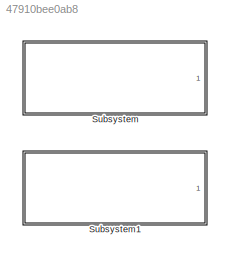
MODEL slx_47910bee0ab8
KIND model
CONFIG AbsTol = auto
CONFIG EnableMultiTasking = off
CONFIG FixedStep = auto
CONFIG MaxStep = auto
CONFIG MinStep = auto
CONFIG RelTol = 1e-3
CONFIG SampleTimeConstraint = Unconstrained
CONFIG SolverName = VariableStepAuto
CONFIG StartTime = 0.0
CONFIG StopTime = 10.0
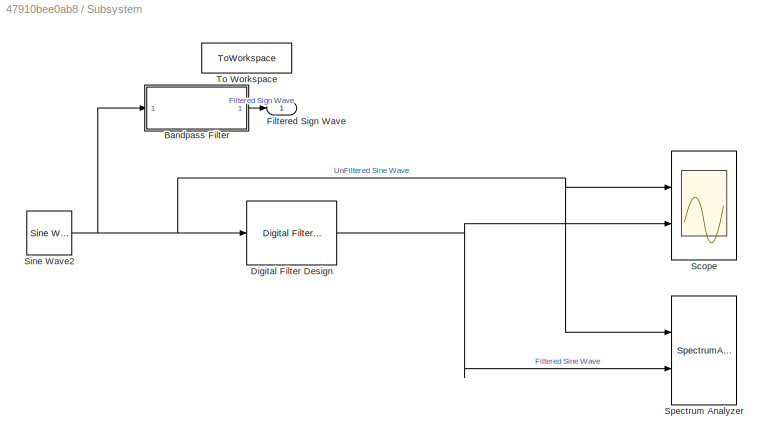
BLOCK [SubSystem] Subsystem
  Ports = [0, 1]
  RequestExecContextInheritance = off
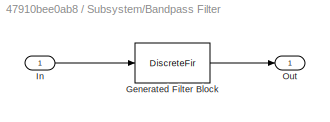
BLOCK [SubSystem] Subsystem/Bandpass Filter
  Commented = on
  CopyFcn = fdesignblkfcn(gcbh, {'CopyFcn'});
  DialogController = fdesignblkfcn
  InitFcn = fdesignblkfcn(gcbh, {'InitFcn'});
  Ports = [1, 1]
  RequestExecContextInheritance = off
  UserDataPersistent = on
BLOCK [DiscreteFir] Subsystem/Bandpass Filter/Generated Filter Block
  Coefficients = [-0.00089922914877444424 0.00164145187479435928 0.00313520718422255745 -0.00407075508288146874 -0.00637318522279040241 0.00748742868060905172 0.00983543195662957281 -0.0101893165134462078 -0.011302794465874122 0.0096929185841818314 0.00794286539874642684 -0.00313682478812214987 0.00282998788779430157 -0.0115086742430014887 -0.0220801362194615741 0.0342453254245076721 0.0483566616489054524 -0.06235...<+691ch>
  InputPortMap = u0
  InputProcessing = Columns as channels (frame based)
  OutputPortMap = o0
  Ports = [1, 1]
  Tag = BlockMethodSubSystem
BLOCK [Inport] Subsystem/Bandpass Filter/In
BLOCK [Outport] Subsystem/Bandpass Filter/Out
  VectorParamsAs1DForOutWhenUnconnected = off
BLOCK [Reference] Subsystem/Digital Filter Design  REF=dsparch4/Digital
Filter Design
  Ports = [1, 1]
  SourceBlock = dsparch4/Digital\nFilter Design
  SourceProductBaseCode = DS
  SourceType = Digital Filter Design
  UserDataPersistent = on
BLOCK [Outport] Subsystem/Filtered Sign Wave
BLOCK [Scope] Subsystem/Scope
  Floating = off
  NumInputPorts = 2
  Ports = [2]
  ScopeSpecificationString = Simulink.scopes.TimeScopeBlockCfg('CurrentConfiguration', extmgr.ConfigurationSet(extmgr.Configuration('Core','General UI',true),extmgr.Configuration('Core','Source UI',true),extmgr.Configuration('Sources','WiredSimulink',true),extmgr.Configuration('Visuals','Time Domain',true,'SerializedDisplays',{struct('MinYLimReal','-1.26474','MaxYLimReal','1.26474','YLabelReal','','MinYLimMag','0.00000','MaxY...<+1361ch>
BLOCK [Reference] Subsystem/Sine Wave2  REF=dspsrcs4/Sine Wave
  Ports = [0, 1]
  SourceBlock = dspsrcs4/Sine Wave
  SourceProductBaseCode = DS
  SourceType = Sine Wave
BLOCK [SpectrumAnalyzer] Subsystem/Spectrum Analyzer
  NumInputPorts = 2
  Ports = [2]
  ScopeSpecificationString = spbscopes.SpectrumAnalyzerBlockCfg('CurrentConfiguration', extmgr.ConfigurationSet(extmgr.Configuration('Core','General UI',true),extmgr.Configuration('Core','Source UI',true),extmgr.Configuration('Sources','WiredSimulink',true),extmgr.Configuration('Visuals','Spectrum',true,'AxesProperties',struct('Color',{[0 0 0],[0 0 0]},'XColor',{[0.686274509803922 0.686274509803922 0.686274509803922],[0.68627...<+2191ch>
BLOCK [ToWorkspace] Subsystem/To Workspace
  Commented = on
  FixptAsFi = on
  MaxDataPoints = inf
  Ports = [1]
  SampleTime = -1
  SaveFormat = Timeseries
  VariableName = BPF_Sine_Simi
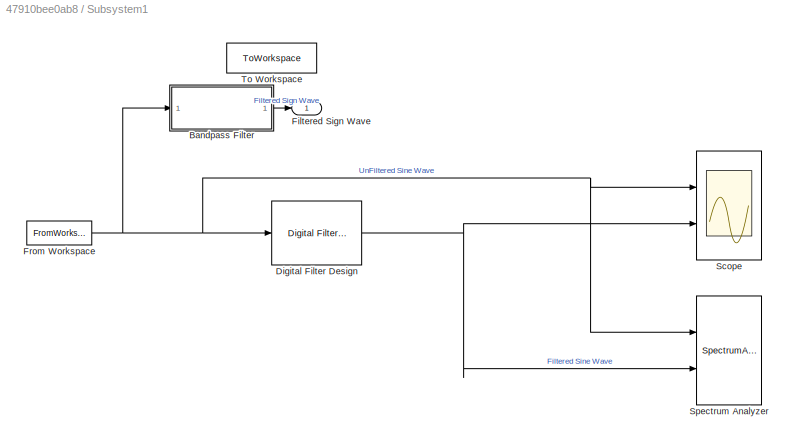
BLOCK [SubSystem] Subsystem1
  Ports = [0, 1]
  RequestExecContextInheritance = off
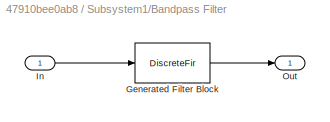
BLOCK [SubSystem] Subsystem1/Bandpass Filter
  Commented = on
  CopyFcn = fdesignblkfcn(gcbh, {'CopyFcn'});
  DialogController = fdesignblkfcn
  InitFcn = fdesignblkfcn(gcbh, {'InitFcn'});
  Ports = [1, 1]
  RequestExecContextInheritance = off
  UserDataPersistent = on
BLOCK [DiscreteFir] Subsystem1/Bandpass Filter/Generated Filter Block
  Coefficients = [-0.00089922914877444424 0.00164145187479435928 0.00313520718422255745 -0.00407075508288146874 -0.00637318522279040241 0.00748742868060905172 0.00983543195662957281 -0.0101893165134462078 -0.011302794465874122 0.0096929185841818314 0.00794286539874642684 -0.00313682478812214987 0.00282998788779430157 -0.0115086742430014887 -0.0220801362194615741 0.0342453254245076721 0.0483566616489054524 -0.06235...<+691ch>
  InputPortMap = u0
  InputProcessing = Columns as channels (frame based)
  OutputPortMap = o0
  Ports = [1, 1]
  Tag = BlockMethodSubSystem
BLOCK [Inport] Subsystem1/Bandpass Filter/In
BLOCK [Outport] Subsystem1/Bandpass Filter/Out
  VectorParamsAs1DForOutWhenUnconnected = off
BLOCK [Reference] Subsystem1/Digital Filter Design  REF=dsparch4/Digital
Filter Design
  Ports = [1, 1]
  SourceBlock = dsparch4/Digital\nFilter Design
  SourceProductBaseCode = DS
  SourceType = Digital Filter Design
  UserDataPersistent = on
BLOCK [Outport] Subsystem1/Filtered Sign Wave
BLOCK [FromWorkspace] Subsystem1/From Workspace
  SampleTime = -1
  VariableName = Unfiltered_Violin
BLOCK [Scope] Subsystem1/Scope
  Floating = off
  NumInputPorts = 2
  Ports = [2]
  ScopeSpecificationString = Simulink.scopes.TimeScopeBlockCfg('CurrentConfiguration', extmgr.ConfigurationSet(extmgr.Configuration('Core','General UI',true),extmgr.Configuration('Core','Source UI',true),extmgr.Configuration('Sources','WiredSimulink',true),extmgr.Configuration('Visuals','Time Domain',true,'SerializedDisplays',{struct('MinYLimReal','-1.26474','MaxYLimReal','1.26474','YLabelReal','','MinYLimMag','0.00000','MaxY...<+1361ch>
BLOCK [SpectrumAnalyzer] Subsystem1/Spectrum Analyzer
  NumInputPorts = 2
  Ports = [2]
  ScopeSpecificationString = spbscopes.SpectrumAnalyzerBlockCfg('CurrentConfiguration', extmgr.ConfigurationSet(extmgr.Configuration('Core','General UI',true),extmgr.Configuration('Core','Source UI',true),extmgr.Configuration('Sources','WiredSimulink',true),extmgr.Configuration('Visuals','Spectrum',true,'AxesProperties',struct('Color',{[0 0 0],[0 0 0]},'XColor',{[0.686274509803922 0.686274509803922 0.686274509803922],[0.68627...<+2189ch>
BLOCK [ToWorkspace] Subsystem1/To Workspace
  Commented = on
  FixptAsFi = on
  MaxDataPoints = inf
  Ports = [1]
  SampleTime = -1
  SaveFormat = Timeseries
  VariableName = BPF_Sine_Simi
LINE Subsystem/Bandpass Filter:1 -> Subsystem/Filtered Sign Wave:1
NET Subsystem/Digital Filter Design:1 -> Subsystem/Scope:2, Subsystem/Spectrum Analyzer:2
NET Subsystem/Sine Wave2:1 -> Subsystem/Bandpass Filter:1, Subsystem/Digital Filter Design:1, Subsystem/Scope:1, Subsystem/Spectrum Analyzer:1
LINE Subsystem1/Bandpass Filter:1 -> Subsystem1/Filtered Sign Wave:1
NET Subsystem1/Digital Filter Design:1 -> Subsystem1/Scope:2, Subsystem1/Spectrum Analyzer:2
NET Subsystem1/From Workspace:1 -> Subsystem1/Bandpass Filter:1, Subsystem1/Digital Filter Design:1, Subsystem1/Scope:1, Subsystem1/Spectrum Analyzer:1
note: NET lines group one-source signal fan-out (src -> all destinations, sorted); 1:1 wires keep LINE
